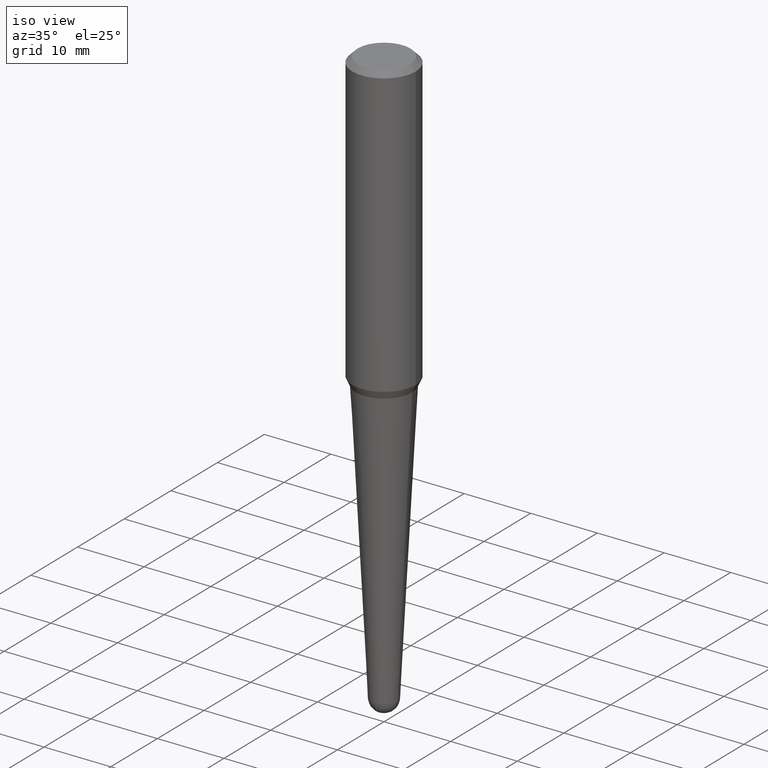
[diagram: clean part render]
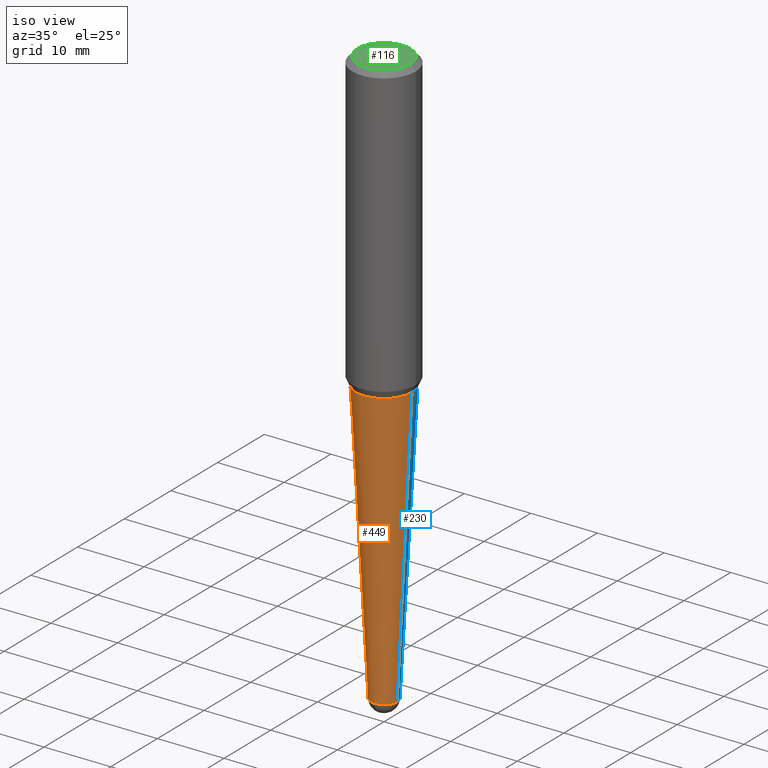
[diagram: same view with three faces highlighted in distinct colors, each labeled with its STEP entity id]
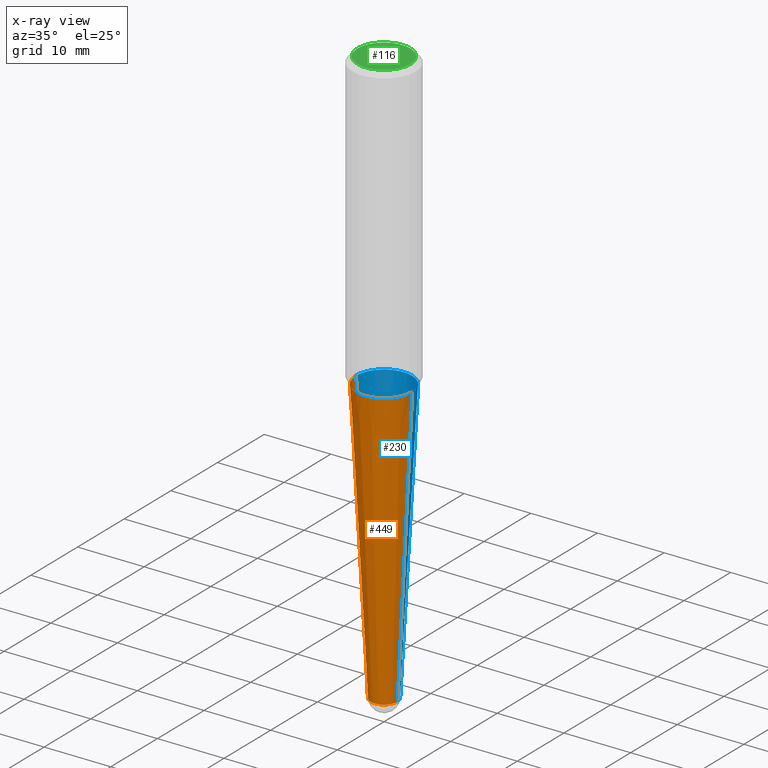
[diagram: x-ray of the same camera — body ghosted, the three highlighted faces saturated]
A machine part, iso view with three faces highlighted in distinct colors.
The next image is the same camera in x-ray (body ghosted, the three faces saturated) — at least one of them is partly hidden behind the body in this view.
Their STEP definitions:

[orange] entity #449 — the highlighted conical surface has half-angle 3 deg.
#12 = EDGE_CURVE ( 'NONE', #411, #355, #79, .T. ) ;
#15 = EDGE_CURVE ( 'NONE', #355, #287, #195, .T. ) ;
#18 = VECTOR ( 'NONE', #256, 39.37007874015748854 ) ;
#27 = DIRECTION ( 'NONE',  ( -2.445468806185136597E-29, 3.491481338843145583E-15, 1.000000000000000000 ) ) ;
#29 = CARTESIAN_POINT ( 'NONE',  ( 0.1658277464057546224, -7.268061307051711819E-15, -1.750000000000000000 ) ) ;
#40 = DIRECTION ( 'NONE',  ( 1.000000000000000000, -6.982962677686263555E-15, 0.000000000000000000 ) ) ;
#62 = CARTESIAN_POINT ( 'NONE',  ( 8.378145410457613452E-29, -1.196177120752549174E-14, -3.425987438182573896 ) ) ;
#73 = DIRECTION ( 'NONE',  ( 1.000000000000000000, -6.982962677686263555E-15, 0.000000000000000000 ) ) ;
#78 = DIRECTION ( 'NONE',  ( -2.445468806185136597E-29, 3.491481338843145583E-15, 1.000000000000000000 ) ) ;
#79 = CIRCLE ( 'NONE', #138, 0.07799296666433265524 ) ;
#87 = ORIENTED_EDGE ( 'NONE', *, *, #357, .T. ) ;
#107 = CARTESIAN_POINT ( 'NONE',  ( -0.07799296666433265524, -8.169706592751506412E-15, -3.425987438182573896 ) ) ;
#110 = CARTESIAN_POINT ( 'NONE',  ( 0.07799296666433265524, -9.887227244958132819E-15, -3.425987438182573896 ) ) ;
#111 = ORIENTED_EDGE ( 'NONE', *, *, #15, .T. ) ;
#114 = CARTESIAN_POINT ( 'NONE',  ( -0.07799296666433265524, -1.140759784848827963E-14, -3.425987438182573896 ) ) ;
#119 = ORIENTED_EDGE ( 'NONE', *, *, #12, .T. ) ;
#124 = VECTOR ( 'NONE', #373, 39.37007874015748854 ) ;
#138 = AXIS2_PLACEMENT_3D ( 'NONE', #299, #422, #40 ) ;
#160 = AXIS2_PLACEMENT_3D ( 'NONE', #62, #27, #274 ) ;
#161 = CARTESIAN_POINT ( 'NONE',  ( 4.279570410823988484E-29, -6.110092342975504671E-15, -1.750000000000000000 ) ) ;
#173 = CARTESIAN_POINT ( 'NONE',  ( 0.07799296666433265524, -1.250639318286455540E-14, -3.425987438182573896 ) ) ;
#195 = CIRCLE ( 'NONE', #293, 0.07799296666433265524 ) ;
#201 = EDGE_CURVE ( 'NONE', #456, #284, #275, .T. ) ;
#207 = FACE_OUTER_BOUND ( 'NONE', #234, .T. ) ;
#234 = EDGE_LOOP ( 'NONE', ( #431, #119, #111, #87, #349 ) ) ;
#256 = DIRECTION ( 'NONE',  ( -0.05233595624294384158, 3.858565720288028779E-15, 0.9986295347545738332 ) ) ;
#263 = CARTESIAN_POINT ( 'NONE',  ( 8.378145410457613452E-29, -1.196177120752549174E-14, -3.425987438182573896 ) ) ;
#274 = DIRECTION ( 'NONE',  ( 1.000000000000000000, -6.982962677686263555E-15, 0.000000000000000000 ) ) ;
#275 = CIRCLE ( 'NONE', #318, 0.1658277464057546502 ) ;
#284 = VERTEX_POINT ( 'NONE', #29 ) ;
#286 = LINE ( 'NONE', #114, #18 ) ;
#287 = VERTEX_POINT ( 'NONE', #110 ) ;
#293 = AXIS2_PLACEMENT_3D ( 'NONE', #263, #78, #73 ) ;
#296 = DIRECTION ( 'NONE',  ( 1.000000000000000000, -6.982962677686270655E-15, 0.000000000000000000 ) ) ;
#299 = CARTESIAN_POINT ( 'NONE',  ( 8.378145410457613452E-29, -1.196177120752549174E-14, -3.425987438182573896 ) ) ;
#318 = AXIS2_PLACEMENT_3D ( 'NONE', #161, #458, #296 ) ;
#329 = CARTESIAN_POINT ( 'NONE',  ( -5.541733590371250335E-16, -0.07799296666434415992, -3.425987438182573896 ) ) ;
#342 = LINE ( 'NONE', #173, #124 ) ;
#349 = ORIENTED_EDGE ( 'NONE', *, *, #201, .F. ) ;
#350 = EDGE_CURVE ( 'NONE', #411, #456, #286, .T. ) ;
#355 = VERTEX_POINT ( 'NONE', #329 ) ;
#357 = EDGE_CURVE ( 'NONE', #287, #284, #342, .T. ) ;
#373 = DIRECTION ( 'NONE',  ( 0.05233595624294384158, 3.121236355867708811E-15, 0.9986295347545738332 ) ) ;
#378 = CARTESIAN_POINT ( 'NONE',  ( -0.1658277464057546224, -4.931815337014735557E-15, -1.750000000000000000 ) ) ;
#411 = VERTEX_POINT ( 'NONE', #107 ) ;
#422 = DIRECTION ( 'NONE',  ( -2.445468806185136597E-29, 3.491481338843145583E-15, 1.000000000000000000 ) ) ;
#431 = ORIENTED_EDGE ( 'NONE', *, *, #350, .F. ) ;
#437 = CONICAL_SURFACE ( 'NONE', #160, 0.07799296666433265524, 0.05235987755982988989 ) ;
#449 = ADVANCED_FACE ( 'NONE', ( #207 ), #437, .T. ) ;
#456 = VERTEX_POINT ( 'NONE', #378 ) ;
#458 = DIRECTION ( 'NONE',  ( -2.445468806185136597E-29, 3.491481338843145583E-15, 1.000000000000000000 ) ) ;

[blue] entity #230 — the highlighted conical surface has half-angle 3 deg.
#8 = DIRECTION ( 'NONE',  ( -2.445468806185136597E-29, 3.491481338843145583E-15, 1.000000000000000000 ) ) ;
#14 = ORIENTED_EDGE ( 'NONE', *, *, #350, .T. ) ;
#18 = VECTOR ( 'NONE', #256, 39.37007874015748854 ) ;
#26 = ORIENTED_EDGE ( 'NONE', *, *, #357, .F. ) ;
#29 = CARTESIAN_POINT ( 'NONE',  ( 0.1658277464057546224, -7.268061307051711819E-15, -1.750000000000000000 ) ) ;
#37 = DIRECTION ( 'NONE',  ( 1.000000000000000000, -6.982962677686263555E-15, 0.000000000000000000 ) ) ;
#45 = ORIENTED_EDGE ( 'NONE', *, *, #243, .T. ) ;
#54 = EDGE_LOOP ( 'NONE', ( #125, #14, #306, #26, #45 ) ) ;
#58 = EDGE_CURVE ( 'NONE', #284, #456, #269, .T. ) ;
#59 = AXIS2_PLACEMENT_3D ( 'NONE', #295, #227, #37 ) ;
#86 = AXIS2_PLACEMENT_3D ( 'NONE', #180, #8, #360 ) ;
#88 = EDGE_CURVE ( 'NONE', #392, #411, #113, .T. ) ;
#107 = CARTESIAN_POINT ( 'NONE',  ( -0.07799296666433265524, -8.169706592751506412E-15, -3.425987438182573896 ) ) ;
#110 = CARTESIAN_POINT ( 'NONE',  ( 0.07799296666433265524, -9.887227244958132819E-15, -3.425987438182573896 ) ) ;
#113 = CIRCLE ( 'NONE', #59, 0.07799296666433265524 ) ;
#114 = CARTESIAN_POINT ( 'NONE',  ( -0.07799296666433265524, -1.140759784848827963E-14, -3.425987438182573896 ) ) ;
#124 = VECTOR ( 'NONE', #373, 39.37007874015748854 ) ;
#125 = ORIENTED_EDGE ( 'NONE', *, *, #88, .T. ) ;
#144 = DIRECTION ( 'NONE',  ( -2.445468806185136597E-29, 3.491481338843145583E-15, 1.000000000000000000 ) ) ;
#173 = CARTESIAN_POINT ( 'NONE',  ( 0.07799296666433265524, -1.250639318286455540E-14, -3.425987438182573896 ) ) ;
#180 = CARTESIAN_POINT ( 'NONE',  ( 4.279570410823988484E-29, -6.110092342975504671E-15, -1.750000000000000000 ) ) ;
#227 = DIRECTION ( 'NONE',  ( -2.445468806185136597E-29, 3.491481338843145583E-15, 1.000000000000000000 ) ) ;
#230 = ADVANCED_FACE ( 'NONE', ( #289 ), #435, .T. ) ;
#241 = CIRCLE ( 'NONE', #394, 0.07799296666433265524 ) ;
#243 = EDGE_CURVE ( 'NONE', #287, #392, #241, .T. ) ;
#250 = CARTESIAN_POINT ( 'NONE',  ( 8.378145410457613452E-29, -1.196177120752549174E-14, -3.425987438182573896 ) ) ;
#254 = AXIS2_PLACEMENT_3D ( 'NONE', #250, #259, #332 ) ;
#256 = DIRECTION ( 'NONE',  ( -0.05233595624294384158, 3.858565720288028779E-15, 0.9986295347545738332 ) ) ;
#259 = DIRECTION ( 'NONE',  ( -2.445468806185136597E-29, 3.491481338843145583E-15, 1.000000000000000000 ) ) ;
#269 = CIRCLE ( 'NONE', #86, 0.1658277464057546502 ) ;
#284 = VERTEX_POINT ( 'NONE', #29 ) ;
#286 = LINE ( 'NONE', #114, #18 ) ;
#287 = VERTEX_POINT ( 'NONE', #110 ) ;
#289 = FACE_OUTER_BOUND ( 'NONE', #54, .T. ) ;
#295 = CARTESIAN_POINT ( 'NONE',  ( 8.378145410457613452E-29, -1.196177120752549174E-14, -3.425987438182573896 ) ) ;
#306 = ORIENTED_EDGE ( 'NONE', *, *, #58, .F. ) ;
#332 = DIRECTION ( 'NONE',  ( 1.000000000000000000, -6.982962677686263555E-15, 0.000000000000000000 ) ) ;
#342 = LINE ( 'NONE', #173, #124 ) ;
#350 = EDGE_CURVE ( 'NONE', #411, #456, #286, .T. ) ;
#353 = DIRECTION ( 'NONE',  ( 1.000000000000000000, -6.982962677686263555E-15, 0.000000000000000000 ) ) ;
#357 = EDGE_CURVE ( 'NONE', #287, #284, #342, .T. ) ;
#360 = DIRECTION ( 'NONE',  ( 1.000000000000000000, -6.982962677686270655E-15, 0.000000000000000000 ) ) ;
#373 = DIRECTION ( 'NONE',  ( 0.05233595624294384158, 3.121236355867708811E-15, 0.9986295347545738332 ) ) ;
#378 = CARTESIAN_POINT ( 'NONE',  ( -0.1658277464057546224, -4.931815337014735557E-15, -1.750000000000000000 ) ) ;
#392 = VERTEX_POINT ( 'NONE', #412 ) ;
#393 = CARTESIAN_POINT ( 'NONE',  ( 8.378145410457613452E-29, -1.196177120752549174E-14, -3.425987438182573896 ) ) ;
#394 = AXIS2_PLACEMENT_3D ( 'NONE', #393, #144, #353 ) ;
#411 = VERTEX_POINT ( 'NONE', #107 ) ;
#412 = CARTESIAN_POINT ( 'NONE',  ( 5.446219753391475755E-16, 0.07799296666432065095, -3.425987438182573896 ) ) ;
#435 = CONICAL_SURFACE ( 'NONE', #254, 0.07799296666433265524, 0.05235987755982988989 ) ;
#456 = VERTEX_POINT ( 'NONE', #378 ) ;

[green] entity #116 — the highlighted planar face has unit normal (0, -0, -1).
#4 = CARTESIAN_POINT ( 'NONE',  ( 7.722011548868259977E-45, -1.102498594666746165E-30, -3.157681475771667581E-16 ) ) ;
#31 = FACE_OUTER_BOUND ( 'NONE', #385, .T. ) ;
#47 = EDGE_CURVE ( 'NONE', #371, #194, #419, .T. ) ;
#81 = AXIS2_PLACEMENT_3D ( 'NONE', #365, #217, #358 ) ;
#84 = DIRECTION ( 'NONE',  ( 2.438088387897960049E-29, -3.491481338843145188E-15, -1.000000000000000000 ) ) ;
#116 = ADVANCED_FACE ( 'NONE', ( #31 ), #396, .F. ) ;
#139 = AXIS2_PLACEMENT_3D ( 'NONE', #4, #84, #147 ) ;
#147 = DIRECTION ( 'NONE',  ( -1.000000000000000000, 6.982962677686265922E-15, -4.876176775795935793E-29 ) ) ;
#176 = ORIENTED_EDGE ( 'NONE', *, *, #47, .T. ) ;
#194 = VERTEX_POINT ( 'NONE', #366 ) ;
#217 = DIRECTION ( 'NONE',  ( -2.445468806185136597E-29, 3.491481338843145583E-15, 1.000000000000000000 ) ) ;
#248 = DIRECTION ( 'NONE',  ( 1.000000000000000000, -6.982962677686266711E-15, 4.891558762689330142E-29 ) ) ;
#282 = CARTESIAN_POINT ( 'NONE',  ( -0.1562500000000004718, 1.145642314307903527E-15, -6.315362951543414047E-16 ) ) ;
#302 = AXIS2_PLACEMENT_3D ( 'NONE', #308, #444, #248 ) ;
#308 = CARTESIAN_POINT ( 'NONE',  ( 1.544402309773652493E-44, -2.204997189333492680E-30, -6.315362951543336147E-16 ) ) ;
#310 = CIRCLE ( 'NONE', #302, 0.1562500000000004718 ) ;
#358 = DIRECTION ( 'NONE',  ( 1.000000000000000000, -6.982962677686266711E-15, 4.891558762689330142E-29 ) ) ;
#365 = CARTESIAN_POINT ( 'NONE',  ( 1.544402309773652493E-44, -2.204997189333492680E-30, -6.315362951543336147E-16 ) ) ;
#366 = CARTESIAN_POINT ( 'NONE',  ( 0.1562500000000004718, -1.233702489286409101E-15, -6.315362951543255289E-16 ) ) ;
#371 = VERTEX_POINT ( 'NONE', #282 ) ;
#385 = EDGE_LOOP ( 'NONE', ( #176, #433 ) ) ;
#396 = PLANE ( 'NONE',  #139 ) ;
#419 = CIRCLE ( 'NONE', #81, 0.1562500000000004718 ) ;
#433 = ORIENTED_EDGE ( 'NONE', *, *, #457, .T. ) ;
#444 = DIRECTION ( 'NONE',  ( -2.445468806185136597E-29, 3.491481338843145583E-15, 1.000000000000000000 ) ) ;
#457 = EDGE_CURVE ( 'NONE', #194, #371, #310, .T. ) ;